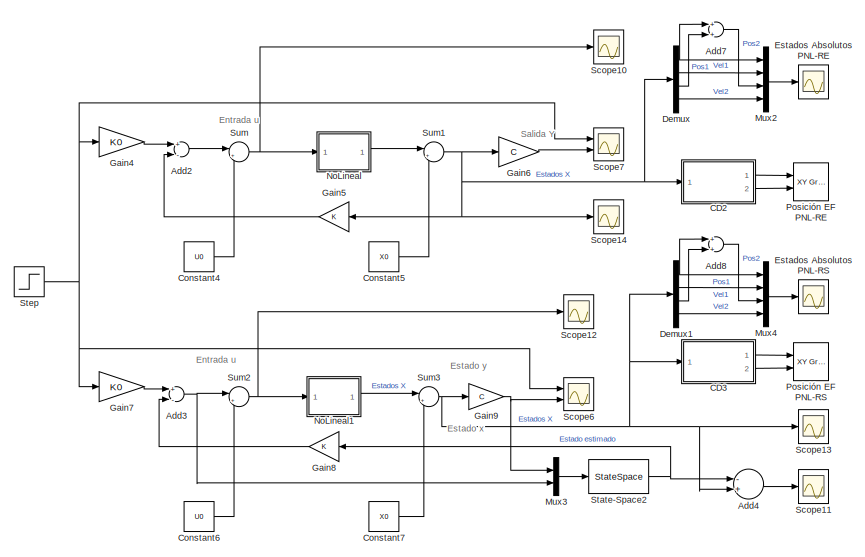
[diagram: root canvas - part 1/2, left side, full height]
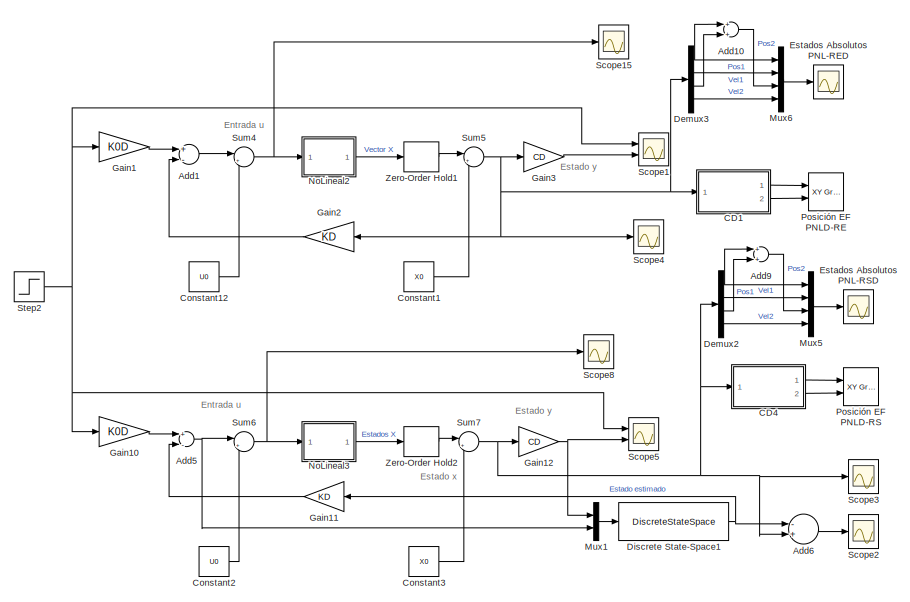
[diagram: root canvas - part 2/2, right side, full height]
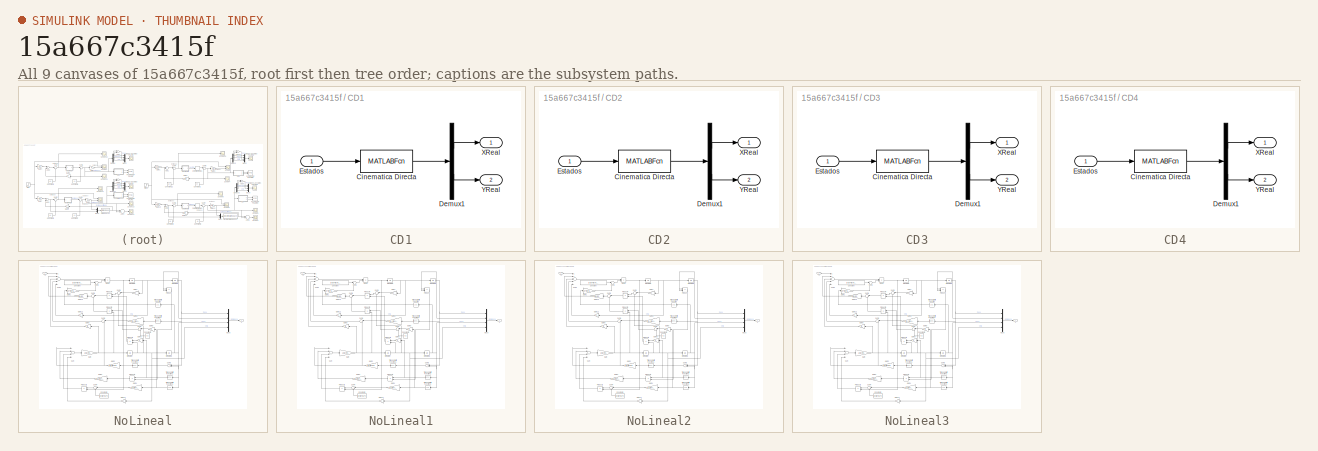
[diagram: thumbnail index - all 9 canvases of the model, root first then tree order]
MODEL slx_15a667c3415f
KIND model
CONFIG AbsTol = auto
CONFIG EnableMultiTasking = off
CONFIG FixedStep = 0.01
CONFIG MaxStep = auto
CONFIG MinStep = auto
CONFIG RelTol = 1e-3
CONFIG SampleTimeConstraint = Unconstrained
CONFIG Solver = ode45
CONFIG SolverName = ode45
CONFIG StartTime = 0.0
CONFIG StopTime = ts
BLOCK [Sum] Add1
  InputSameDT = off
  Inputs = +-
  OutDataTypeStr = Inherit: Inherit via internal rule
  Ports = [2, 1]
  SaturateOnIntegerOverflow = off
BLOCK [Sum] Add10
  InputSameDT = off
  OutDataTypeStr = Inherit: Inherit via internal rule
  Ports = [2, 1]
  SaturateOnIntegerOverflow = off
BLOCK [Sum] Add2
  InputSameDT = off
  Inputs = +-
  OutDataTypeStr = Inherit: Inherit via internal rule
  Ports = [2, 1]
  SaturateOnIntegerOverflow = off
BLOCK [Sum] Add3
  InputSameDT = off
  Inputs = +-
  OutDataTypeStr = Inherit: Inherit via internal rule
  Ports = [2, 1]
  SaturateOnIntegerOverflow = off
BLOCK [Sum] Add4
  InputSameDT = off
  Inputs = -+
  OutDataTypeStr = Inherit: Inherit via internal rule
  Ports = [2, 1]
  SaturateOnIntegerOverflow = off
BLOCK [Sum] Add5
  InputSameDT = off
  Inputs = +-
  OutDataTypeStr = Inherit: Inherit via internal rule
  Ports = [2, 1]
  SaturateOnIntegerOverflow = off
BLOCK [Sum] Add6
  InputSameDT = off
  Inputs = -+
  OutDataTypeStr = Inherit: Inherit via internal rule
  Ports = [2, 1]
  SaturateOnIntegerOverflow = off
BLOCK [Sum] Add7
  InputSameDT = off
  OutDataTypeStr = Inherit: Inherit via internal rule
  Ports = [2, 1]
  SaturateOnIntegerOverflow = off
BLOCK [Sum] Add8
  InputSameDT = off
  OutDataTypeStr = Inherit: Inherit via internal rule
  Ports = [2, 1]
  SaturateOnIntegerOverflow = off
BLOCK [Sum] Add9
  InputSameDT = off
  OutDataTypeStr = Inherit: Inherit via internal rule
  Ports = [2, 1]
  SaturateOnIntegerOverflow = off
BLOCK [SubSystem] CD1
  Ports = [1, 2]
  RequestExecContextInheritance = off
  TreatAsAtomicUnit = on
BLOCK [MATLABFcn] CD1/Cinematica Directa
  MATLABFcn = CinematicaDirecta
  OutputDimensions = 2
  Ports = [1, 1]
BLOCK [Demux] CD1/Demux1
  DisplayOption = bar
  Outputs = 2
  Ports = [1, 2]
BLOCK [Inport] CD1/Estados
  IconDisplay = Port number
BLOCK [Outport] CD1/XReal
  IconDisplay = Port number
  VectorParamsAs1DForOutWhenUnconnected = off
BLOCK [Outport] CD1/YReal
  IconDisplay = Port number
  Port = 2
  VectorParamsAs1DForOutWhenUnconnected = off
BLOCK [SubSystem] CD2
  Ports = [1, 2]
  RequestExecContextInheritance = off
  TreatAsAtomicUnit = on
BLOCK [MATLABFcn] CD2/Cinematica Directa
  MATLABFcn = CinematicaDirecta
  OutputDimensions = 2
  Ports = [1, 1]
BLOCK [Demux] CD2/Demux1
  DisplayOption = bar
  Outputs = 2
  Ports = [1, 2]
BLOCK [Inport] CD2/Estados
  IconDisplay = Port number
BLOCK [Outport] CD2/XReal
  IconDisplay = Port number
  VectorParamsAs1DForOutWhenUnconnected = off
BLOCK [Outport] CD2/YReal
  IconDisplay = Port number
  Port = 2
  VectorParamsAs1DForOutWhenUnconnected = off
BLOCK [SubSystem] CD3
  Ports = [1, 2]
  RequestExecContextInheritance = off
  TreatAsAtomicUnit = on
BLOCK [MATLABFcn] CD3/Cinematica Directa
  MATLABFcn = CinematicaDirecta
  OutputDimensions = 2
  Ports = [1, 1]
BLOCK [Demux] CD3/Demux1
  DisplayOption = bar
  Outputs = 2
  Ports = [1, 2]
BLOCK [Inport] CD3/Estados
  IconDisplay = Port number
BLOCK [Outport] CD3/XReal
  IconDisplay = Port number
  VectorParamsAs1DForOutWhenUnconnected = off
BLOCK [Outport] CD3/YReal
  IconDisplay = Port number
  Port = 2
  VectorParamsAs1DForOutWhenUnconnected = off
BLOCK [SubSystem] CD4
  Ports = [1, 2]
  RequestExecContextInheritance = off
  TreatAsAtomicUnit = on
BLOCK [MATLABFcn] CD4/Cinematica Directa
  MATLABFcn = CinematicaDirecta
  OutputDimensions = 2
  Ports = [1, 1]
BLOCK [Demux] CD4/Demux1
  DisplayOption = bar
  Outputs = 2
  Ports = [1, 2]
BLOCK [Inport] CD4/Estados
  IconDisplay = Port number
BLOCK [Outport] CD4/XReal
  IconDisplay = Port number
  VectorParamsAs1DForOutWhenUnconnected = off
BLOCK [Outport] CD4/YReal
  IconDisplay = Port number
  Port = 2
  VectorParamsAs1DForOutWhenUnconnected = off
BLOCK [Constant] Constant1
  Value = X0
BLOCK [Constant] Constant12
  Value = U0
BLOCK [Constant] Constant2
  Value = U0
BLOCK [Constant] Constant3
  Value = X0
BLOCK [Constant] Constant4
  Value = U0
BLOCK [Constant] Constant5
  Value = X0
BLOCK [Constant] Constant6
  Value = U0
BLOCK [Constant] Constant7
  Value = X0
BLOCK [Demux] Demux
  DisplayOption = bar
  Ports = [1, 4]
BLOCK [Demux] Demux1
  DisplayOption = bar
  Ports = [1, 4]
BLOCK [Demux] Demux2
  DisplayOption = bar
  Ports = [1, 4]
BLOCK [Demux] Demux3
  DisplayOption = bar
  Ports = [1, 4]
BLOCK [DiscreteStateSpace] Discrete State-Space1
  A = AD-LD*CD
  B = [LD BD]
  C = eye(4)
  D = zeros(4,2)
  InitialCondition = XI
  SampleTime = tm
BLOCK [Scope] Estados Absolutos PNL-RE
  Floating = off
  NumInputPorts = 1
  Ports = [1]
  ScopeSpecificationString = Simulink.scopes.TimeScopeBlockCfg('CurrentConfiguration', extmgr.ConfigurationSet(extmgr.Configuration('Core','General UI',true,'FigureColor',[0 0 0]),extmgr.Configuration('Core','Source UI',true),extmgr.Configuration('Sources','WiredSimulink',true,'DataLoggingVariableName','ScopeData1'),extmgr.Configuration('Visuals','Time Domain',true,'SerializedDisplays',{struct('MinYLimReal','-1.14032','MaxYLi...<+2080ch>
BLOCK [Scope] Estados Absolutos PNL-RED
  Floating = off
  NumInputPorts = 1
  Ports = [1]
  ScopeSpecificationString = Simulink.scopes.TimeScopeBlockCfg('CurrentConfiguration', extmgr.ConfigurationSet(extmgr.Configuration('Core','General UI',true,'FigureColor',[0 0 0]),extmgr.Configuration('Core','Source UI',true),extmgr.Configuration('Sources','WiredSimulink',true,'DataLoggingVariableName','ScopeData4'),extmgr.Configuration('Visuals','Time Domain',true,'SerializedDisplays',{struct('MinYLimReal','-1.17599','MaxYLi...<+2076ch>
BLOCK [Scope] Estados Absolutos PNL-RS
  Floating = off
  NumInputPorts = 1
  Ports = [1]
  ScopeSpecificationString = Simulink.scopes.TimeScopeBlockCfg('CurrentConfiguration', extmgr.ConfigurationSet(extmgr.Configuration('Core','General UI',true,'FigureColor',[0 0 0]),extmgr.Configuration('Core','Source UI',true),extmgr.Configuration('Sources','WiredSimulink',true,'DataLoggingVariableName','ScopeData2'),extmgr.Configuration('Visuals','Time Domain',true,'SerializedDisplays',{struct('MinYLimReal','-1.12137','MaxYLi...<+2080ch>
BLOCK [Scope] Estados Absolutos PNL-RSD
  Floating = off
  NumInputPorts = 1
  Ports = [1]
  ScopeSpecificationString = Simulink.scopes.TimeScopeBlockCfg('CurrentConfiguration', extmgr.ConfigurationSet(extmgr.Configuration('Core','General UI',true,'FigureColor',[0 0 0]),extmgr.Configuration('Core','Source UI',true),extmgr.Configuration('Sources','WiredSimulink',true,'DataLoggingVariableName','ScopeData3'),extmgr.Configuration('Visuals','Time Domain',true,'SerializedDisplays',{struct('MinYLimReal','-1.23093','MaxYLi...<+2080ch>
BLOCK [Gain] Gain1
  Gain = K0D
  OutDataTypeStr = Inherit: Inherit via internal rule
  ParamDataTypeStr = Inherit: Inherit via internal rule
  SaturateOnIntegerOverflow = off
BLOCK [Gain] Gain10
  Gain = K0D
  OutDataTypeStr = Inherit: Inherit via internal rule
  ParamDataTypeStr = Inherit: Inherit via internal rule
  SaturateOnIntegerOverflow = off
BLOCK [Gain] Gain11
  Gain = KD
  Multiplication = Matrix(K*u)
  OutDataTypeStr = Inherit: Inherit via internal rule
  ParamDataTypeStr = Inherit: Inherit via internal rule
  SaturateOnIntegerOverflow = off
BLOCK [Gain] Gain12
  Gain = CD
  Multiplication = Matrix(K*u)
  OutDataTypeStr = Inherit: Inherit via internal rule
  ParamDataTypeStr = Inherit: Inherit via internal rule
  SaturateOnIntegerOverflow = off
BLOCK [Gain] Gain2
  Gain = KD
  Multiplication = Matrix(K*u)
  OutDataTypeStr = Inherit: Inherit via internal rule
  ParamDataTypeStr = Inherit: Inherit via internal rule
  SaturateOnIntegerOverflow = off
BLOCK [Gain] Gain3
  Gain = CD
  Multiplication = Matrix(K*u)
  OutDataTypeStr = Inherit: Inherit via internal rule
  ParamDataTypeStr = Inherit: Inherit via internal rule
  SaturateOnIntegerOverflow = off
BLOCK [Gain] Gain4
  Gain = K0
  OutDataTypeStr = Inherit: Inherit via internal rule
  ParamDataTypeStr = Inherit: Inherit via internal rule
  SaturateOnIntegerOverflow = off
BLOCK [Gain] Gain5
  Gain = K
  Multiplication = Matrix(K*u)
  OutDataTypeStr = Inherit: Inherit via internal rule
  ParamDataTypeStr = Inherit: Inherit via internal rule
  SaturateOnIntegerOverflow = off
BLOCK [Gain] Gain6
  Gain = C
  Multiplication = Matrix(K*u)
  OutDataTypeStr = Inherit: Inherit via internal rule
  ParamDataTypeStr = Inherit: Inherit via internal rule
  SaturateOnIntegerOverflow = off
BLOCK [Gain] Gain7
  Gain = K0
  OutDataTypeStr = Inherit: Inherit via internal rule
  ParamDataTypeStr = Inherit: Inherit via internal rule
  SaturateOnIntegerOverflow = off
BLOCK [Gain] Gain8
  Gain = K
  Multiplication = Matrix(K*u)
  OutDataTypeStr = Inherit: Inherit via internal rule
  ParamDataTypeStr = Inherit: Inherit via internal rule
  SaturateOnIntegerOverflow = off
BLOCK [Gain] Gain9
  Gain = C
  Multiplication = Matrix(K*u)
  OutDataTypeStr = Inherit: Inherit via internal rule
  ParamDataTypeStr = Inherit: Inherit via internal rule
  SaturateOnIntegerOverflow = off
BLOCK [Mux] Mux1
  DisplayOption = bar
  Inputs = 2
  Ports = [2, 1]
BLOCK [Mux] Mux2
  DisplayOption = bar
  Ports = [4, 1]
BLOCK [Mux] Mux3
  DisplayOption = bar
  Inputs = 2
  Ports = [2, 1]
BLOCK [Mux] Mux4
  DisplayOption = bar
  Ports = [4, 1]
BLOCK [Mux] Mux5
  DisplayOption = bar
  Ports = [4, 1]
BLOCK [Mux] Mux6
  DisplayOption = bar
  Ports = [4, 1]
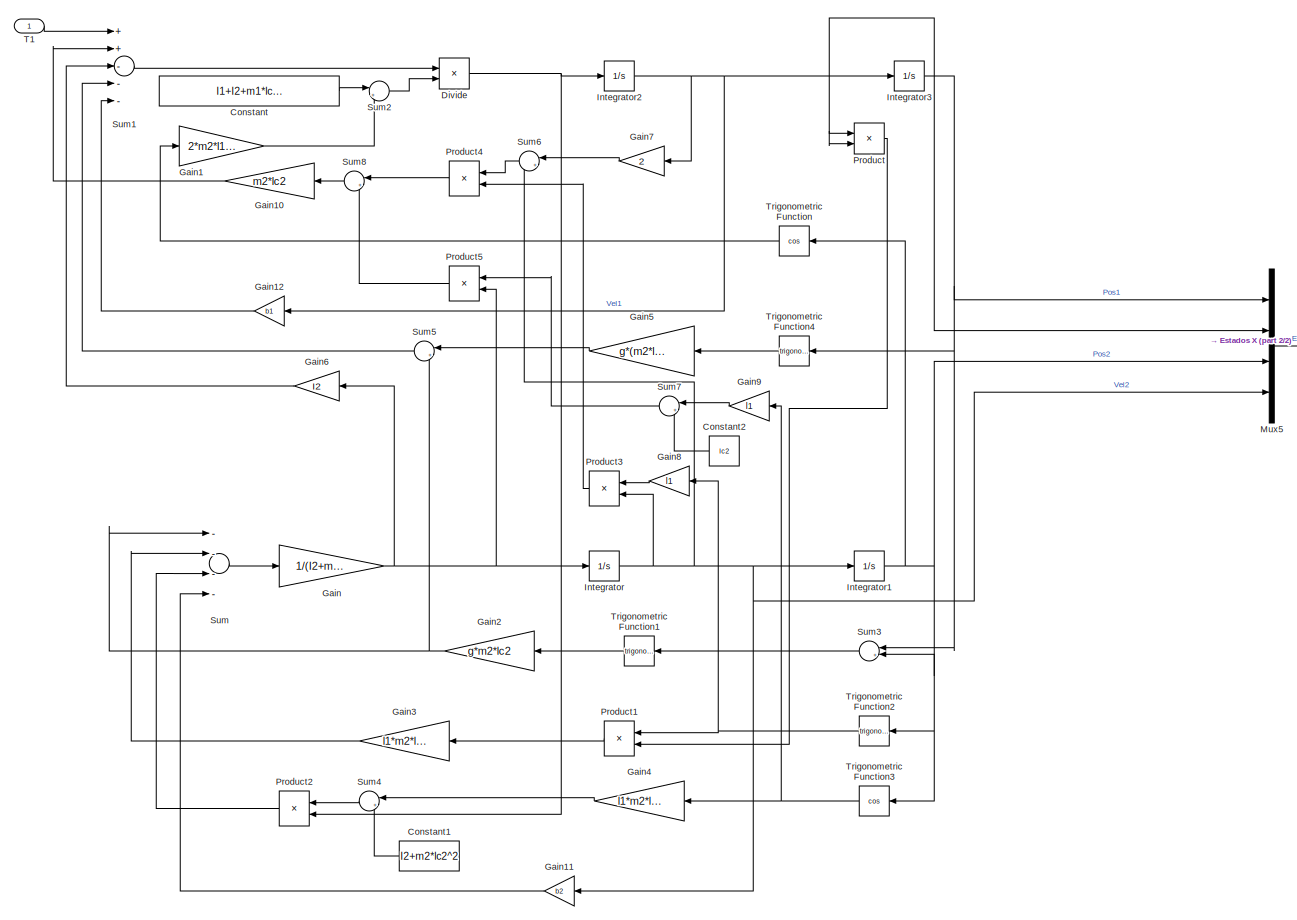
[diagram: NoLineal - part 1/2, most of the canvas]
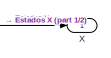
[diagram: NoLineal - part 2/2, middle right region]
BLOCK [SubSystem] NoLineal
  Ports = [1, 1]
  RequestExecContextInheritance = off
BLOCK [Constant] NoLineal/Constant
  Value = I1+I2+m1*lc1^2+m2*(l1^2+lc2^2)
BLOCK [Constant] NoLineal/Constant1
  Value = I2+m2*lc2^2
BLOCK [Constant] NoLineal/Constant2
  Value = lc2
BLOCK [Product] NoLineal/Divide
  InputSameDT = off
  Inputs = */
  OutDataTypeStr = Inherit: Inherit via internal rule
  Ports = [2, 1]
  RndMeth = Floor
  SaturateOnIntegerOverflow = off
BLOCK [Gain] NoLineal/Gain
  Gain = 1/(I2+m2*lc2^2)
  OutDataTypeStr = Inherit: Inherit via internal rule
  ParamDataTypeStr = Inherit: Inherit via internal rule
  SaturateOnIntegerOverflow = off
BLOCK [Gain] NoLineal/Gain1
  Gain = 2*m2*l1*lc2
  OutDataTypeStr = Inherit: Inherit via internal rule
  ParamDataTypeStr = Inherit: Inherit via internal rule
  SaturateOnIntegerOverflow = off
BLOCK [Gain] NoLineal/Gain10
  Gain = m2*lc2
  OutDataTypeStr = Inherit: Inherit via internal rule
  ParamDataTypeStr = Inherit: Inherit via internal rule
  SaturateOnIntegerOverflow = off
BLOCK [Gain] NoLineal/Gain11
  Gain = b2
  OutDataTypeStr = Inherit: Inherit via internal rule
  ParamDataTypeStr = Inherit: Inherit via internal rule
  SaturateOnIntegerOverflow = off
BLOCK [Gain] NoLineal/Gain12
  Gain = b1
  OutDataTypeStr = Inherit: Inherit via internal rule
  ParamDataTypeStr = Inherit: Inherit via internal rule
  SaturateOnIntegerOverflow = off
BLOCK [Gain] NoLineal/Gain2
  Gain = g*m2*lc2
  OutDataTypeStr = Inherit: Inherit via internal rule
  ParamDataTypeStr = Inherit: Inherit via internal rule
  SaturateOnIntegerOverflow = off
BLOCK [Gain] NoLineal/Gain3
  Gain = l1*m2*lc2
  OutDataTypeStr = Inherit: Inherit via internal rule
  ParamDataTypeStr = Inherit: Inherit via internal rule
  SaturateOnIntegerOverflow = off
BLOCK [Gain] NoLineal/Gain4
  Gain = l1*m2*lc2
  OutDataTypeStr = Inherit: Inherit via internal rule
  ParamDataTypeStr = Inherit: Inherit via internal rule
  SaturateOnIntegerOverflow = off
BLOCK [Gain] NoLineal/Gain5
  Gain = g*(m2*l1+m1*lc1)
  OutDataTypeStr = Inherit: Inherit via internal rule
  ParamDataTypeStr = Inherit: Inherit via internal rule
  SaturateOnIntegerOverflow = off
BLOCK [Gain] NoLineal/Gain6
  Gain = I2
  OutDataTypeStr = Inherit: Inherit via internal rule
  ParamDataTypeStr = Inherit: Inherit via internal rule
  SaturateOnIntegerOverflow = off
BLOCK [Gain] NoLineal/Gain7
  Gain = 2
  OutDataTypeStr = Inherit: Inherit via internal rule
  ParamDataTypeStr = Inherit: Inherit via internal rule
  SaturateOnIntegerOverflow = off
BLOCK [Gain] NoLineal/Gain8
  Gain = l1
  OutDataTypeStr = Inherit: Inherit via internal rule
  ParamDataTypeStr = Inherit: Inherit via internal rule
  SaturateOnIntegerOverflow = off
BLOCK [Gain] NoLineal/Gain9
  Gain = l1
  OutDataTypeStr = Inherit: Inherit via internal rule
  ParamDataTypeStr = Inherit: Inherit via internal rule
  SaturateOnIntegerOverflow = off
BLOCK [Integrator] NoLineal/Integrator
  InitialCondition = X0(4)
  Ports = [1, 1]
BLOCK [Integrator] NoLineal/Integrator1
  InitialCondition = X0(3)
  Ports = [1, 1]
BLOCK [Integrator] NoLineal/Integrator2
  InitialCondition = X0(2)
  Ports = [1, 1]
BLOCK [Integrator] NoLineal/Integrator3
  InitialCondition = X0(1)
  Ports = [1, 1]
BLOCK [Mux] NoLineal/Mux5
  DisplayOption = bar
  Ports = [4, 1]
BLOCK [Product] NoLineal/Product
  InputSameDT = off
  OutDataTypeStr = Inherit: Inherit via internal rule
  Ports = [2, 1]
  RndMeth = Floor
  SaturateOnIntegerOverflow = off
BLOCK [Product] NoLineal/Product1
  InputSameDT = off
  OutDataTypeStr = Inherit: Inherit via internal rule
  Ports = [2, 1]
  RndMeth = Floor
  SaturateOnIntegerOverflow = off
BLOCK [Product] NoLineal/Product2
  InputSameDT = off
  OutDataTypeStr = Inherit: Inherit via internal rule
  Ports = [2, 1]
  RndMeth = Floor
  SaturateOnIntegerOverflow = off
BLOCK [Product] NoLineal/Product3
  InputSameDT = off
  OutDataTypeStr = Inherit: Inherit via internal rule
  Ports = [2, 1]
  RndMeth = Floor
  SaturateOnIntegerOverflow = off
BLOCK [Product] NoLineal/Product4
  InputSameDT = off
  OutDataTypeStr = Inherit: Inherit via internal rule
  Ports = [2, 1]
  RndMeth = Floor
  SaturateOnIntegerOverflow = off
BLOCK [Product] NoLineal/Product5
  InputSameDT = off
  OutDataTypeStr = Inherit: Inherit via internal rule
  Ports = [2, 1]
  RndMeth = Floor
  SaturateOnIntegerOverflow = off
BLOCK [Sum] NoLineal/Sum
  InputSameDT = off
  Inputs = ----
  OutDataTypeStr = Inherit: Inherit via internal rule
  Ports = [4, 1]
  SaturateOnIntegerOverflow = off
BLOCK [Sum] NoLineal/Sum1
  InputSameDT = off
  Inputs = ++---
  OutDataTypeStr = Inherit: Inherit via internal rule
  Ports = [5, 1]
  SaturateOnIntegerOverflow = off
BLOCK [Sum] NoLineal/Sum2
  IconShape = round
  InputSameDT = off
  Inputs = |++
  OutDataTypeStr = Inherit: Inherit via internal rule
  Ports = [2, 1]
  SaturateOnIntegerOverflow = off
BLOCK [Sum] NoLineal/Sum3
  IconShape = round
  InputSameDT = off
  Inputs = |++
  OutDataTypeStr = Inherit: Inherit via internal rule
  Ports = [2, 1]
  SaturateOnIntegerOverflow = off
BLOCK [Sum] NoLineal/Sum4
  IconShape = round
  InputSameDT = off
  Inputs = |++
  OutDataTypeStr = Inherit: Inherit via internal rule
  Ports = [2, 1]
  SaturateOnIntegerOverflow = off
BLOCK [Sum] NoLineal/Sum5
  IconShape = round
  InputSameDT = off
  Inputs = |++
  OutDataTypeStr = Inherit: Inherit via internal rule
  Ports = [2, 1]
  SaturateOnIntegerOverflow = off
BLOCK [Sum] NoLineal/Sum6
  IconShape = round
  InputSameDT = off
  Inputs = |++
  OutDataTypeStr = Inherit: Inherit via internal rule
  Ports = [2, 1]
  SaturateOnIntegerOverflow = off
BLOCK [Sum] NoLineal/Sum7
  IconShape = round
  InputSameDT = off
  Inputs = |++
  OutDataTypeStr = Inherit: Inherit via internal rule
  Ports = [2, 1]
  SaturateOnIntegerOverflow = off
BLOCK [Sum] NoLineal/Sum8
  IconShape = round
  InputSameDT = off
  Inputs = |+-
  OutDataTypeStr = Inherit: Inherit via internal rule
  Ports = [2, 1]
  SaturateOnIntegerOverflow = off
BLOCK [Inport] NoLineal/T1
  IconDisplay = Port number
BLOCK [Trigonometry] NoLineal/Trigonometric Function
  Operator = cos
  Ports = [1, 1]
BLOCK [Trigonometry] NoLineal/Trigonometric Function1
  Ports = [1, 1]
BLOCK [Trigonometry] NoLineal/Trigonometric Function2
  Ports = [1, 1]
BLOCK [Trigonometry] NoLineal/Trigonometric Function3
  Operator = cos
  Ports = [1, 1]
BLOCK [Trigonometry] NoLineal/Trigonometric Function4
  Ports = [1, 1]
BLOCK [Outport] NoLineal/X
  IconDisplay = Port number
  VectorParamsAs1DForOutWhenUnconnected = off
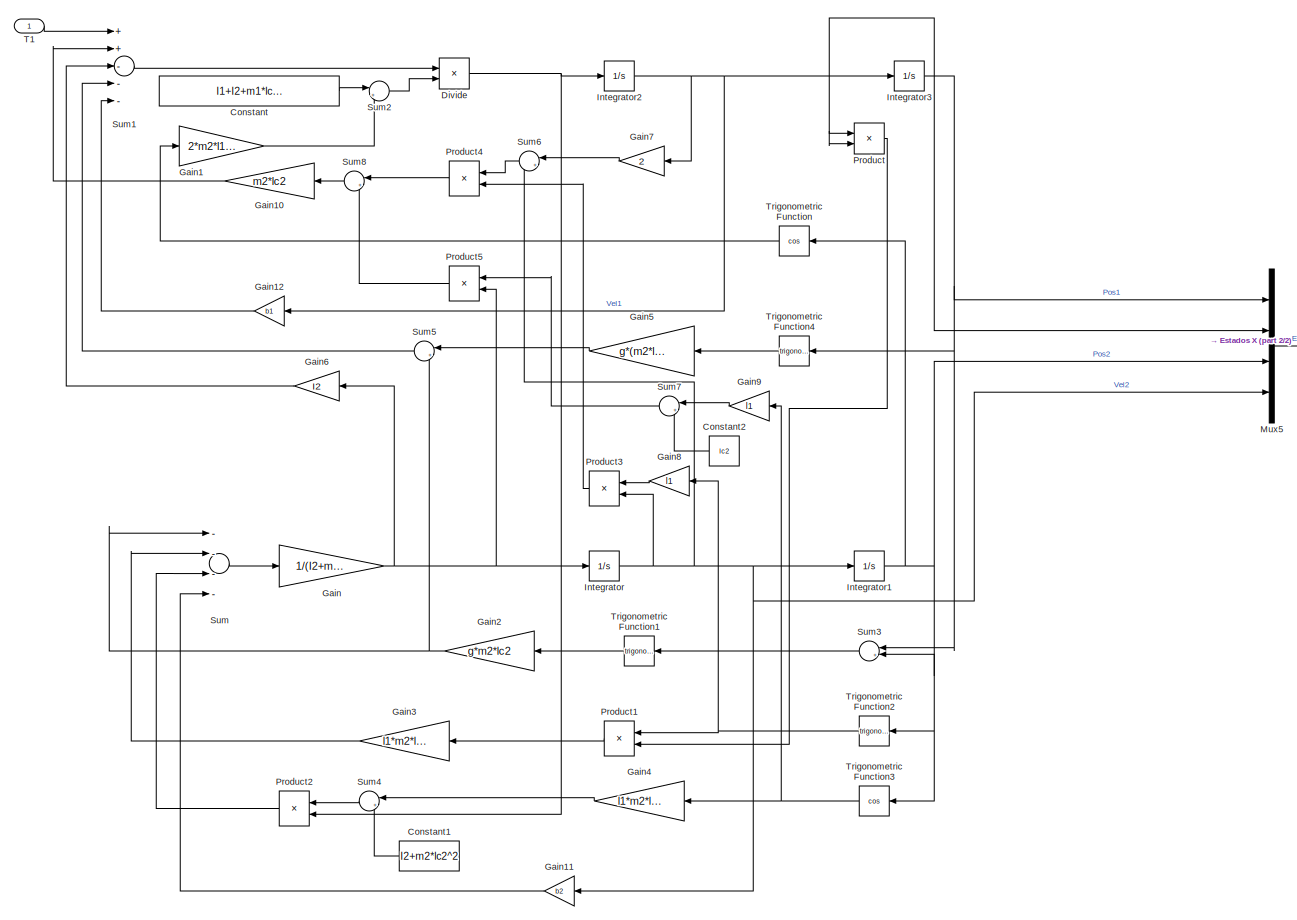
[diagram: NoLineal1 - part 1/2, most of the canvas]
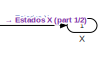
[diagram: NoLineal1 - part 2/2, middle right region]
BLOCK [SubSystem] NoLineal1
  Ports = [1, 1]
  RequestExecContextInheritance = off
BLOCK [Constant] NoLineal1/Constant
  Value = I1+I2+m1*lc1^2+m2*(l1^2+lc2^2)
BLOCK [Constant] NoLineal1/Constant1
  Value = I2+m2*lc2^2
BLOCK [Constant] NoLineal1/Constant2
  Value = lc2
BLOCK [Product] NoLineal1/Divide
  InputSameDT = off
  Inputs = */
  OutDataTypeStr = Inherit: Inherit via internal rule
  Ports = [2, 1]
  RndMeth = Floor
  SaturateOnIntegerOverflow = off
BLOCK [Gain] NoLineal1/Gain
  Gain = 1/(I2+m2*lc2^2)
  OutDataTypeStr = Inherit: Inherit via internal rule
  ParamDataTypeStr = Inherit: Inherit via internal rule
  SaturateOnIntegerOverflow = off
BLOCK [Gain] NoLineal1/Gain1
  Gain = 2*m2*l1*lc2
  OutDataTypeStr = Inherit: Inherit via internal rule
  ParamDataTypeStr = Inherit: Inherit via internal rule
  SaturateOnIntegerOverflow = off
BLOCK [Gain] NoLineal1/Gain10
  Gain = m2*lc2
  OutDataTypeStr = Inherit: Inherit via internal rule
  ParamDataTypeStr = Inherit: Inherit via internal rule
  SaturateOnIntegerOverflow = off
BLOCK [Gain] NoLineal1/Gain11
  Gain = b2
  OutDataTypeStr = Inherit: Inherit via internal rule
  ParamDataTypeStr = Inherit: Inherit via internal rule
  SaturateOnIntegerOverflow = off
BLOCK [Gain] NoLineal1/Gain12
  Gain = b1
  OutDataTypeStr = Inherit: Inherit via internal rule
  ParamDataTypeStr = Inherit: Inherit via internal rule
  SaturateOnIntegerOverflow = off
BLOCK [Gain] NoLineal1/Gain2
  Gain = g*m2*lc2
  OutDataTypeStr = Inherit: Inherit via internal rule
  ParamDataTypeStr = Inherit: Inherit via internal rule
  SaturateOnIntegerOverflow = off
BLOCK [Gain] NoLineal1/Gain3
  Gain = l1*m2*lc2
  OutDataTypeStr = Inherit: Inherit via internal rule
  ParamDataTypeStr = Inherit: Inherit via internal rule
  SaturateOnIntegerOverflow = off
BLOCK [Gain] NoLineal1/Gain4
  Gain = l1*m2*lc2
  OutDataTypeStr = Inherit: Inherit via internal rule
  ParamDataTypeStr = Inherit: Inherit via internal rule
  SaturateOnIntegerOverflow = off
BLOCK [Gain] NoLineal1/Gain5
  Gain = g*(m2*l1+m1*lc1)
  OutDataTypeStr = Inherit: Inherit via internal rule
  ParamDataTypeStr = Inherit: Inherit via internal rule
  SaturateOnIntegerOverflow = off
BLOCK [Gain] NoLineal1/Gain6
  Gain = I2
  OutDataTypeStr = Inherit: Inherit via internal rule
  ParamDataTypeStr = Inherit: Inherit via internal rule
  SaturateOnIntegerOverflow = off
BLOCK [Gain] NoLineal1/Gain7
  Gain = 2
  OutDataTypeStr = Inherit: Inherit via internal rule
  ParamDataTypeStr = Inherit: Inherit via internal rule
  SaturateOnIntegerOverflow = off
BLOCK [Gain] NoLineal1/Gain8
  Gain = l1
  OutDataTypeStr = Inherit: Inherit via internal rule
  ParamDataTypeStr = Inherit: Inherit via internal rule
  SaturateOnIntegerOverflow = off
BLOCK [Gain] NoLineal1/Gain9
  Gain = l1
  OutDataTypeStr = Inherit: Inherit via internal rule
  ParamDataTypeStr = Inherit: Inherit via internal rule
  SaturateOnIntegerOverflow = off
BLOCK [Integrator] NoLineal1/Integrator
  InitialCondition = X0(4)
  Ports = [1, 1]
BLOCK [Integrator] NoLineal1/Integrator1
  InitialCondition = X0(3)
  Ports = [1, 1]
BLOCK [Integrator] NoLineal1/Integrator2
  InitialCondition = X0(2)
  Ports = [1, 1]
BLOCK [Integrator] NoLineal1/Integrator3
  InitialCondition = X0(1)
  Ports = [1, 1]
BLOCK [Mux] NoLineal1/Mux5
  DisplayOption = bar
  Ports = [4, 1]
BLOCK [Product] NoLineal1/Product
  InputSameDT = off
  OutDataTypeStr = Inherit: Inherit via internal rule
  Ports = [2, 1]
  RndMeth = Floor
  SaturateOnIntegerOverflow = off
BLOCK [Product] NoLineal1/Product1
  InputSameDT = off
  OutDataTypeStr = Inherit: Inherit via internal rule
  Ports = [2, 1]
  RndMeth = Floor
  SaturateOnIntegerOverflow = off
BLOCK [Product] NoLineal1/Product2
  InputSameDT = off
  OutDataTypeStr = Inherit: Inherit via internal rule
  Ports = [2, 1]
  RndMeth = Floor
  SaturateOnIntegerOverflow = off
BLOCK [Product] NoLineal1/Product3
  InputSameDT = off
  OutDataTypeStr = Inherit: Inherit via internal rule
  Ports = [2, 1]
  RndMeth = Floor
  SaturateOnIntegerOverflow = off
BLOCK [Product] NoLineal1/Product4
  InputSameDT = off
  OutDataTypeStr = Inherit: Inherit via internal rule
  Ports = [2, 1]
  RndMeth = Floor
  SaturateOnIntegerOverflow = off
BLOCK [Product] NoLineal1/Product5
  InputSameDT = off
  OutDataTypeStr = Inherit: Inherit via internal rule
  Ports = [2, 1]
  RndMeth = Floor
  SaturateOnIntegerOverflow = off
BLOCK [Sum] NoLineal1/Sum
  InputSameDT = off
  Inputs = ----
  OutDataTypeStr = Inherit: Inherit via internal rule
  Ports = [4, 1]
  SaturateOnIntegerOverflow = off
BLOCK [Sum] NoLineal1/Sum1
  InputSameDT = off
  Inputs = ++---
  OutDataTypeStr = Inherit: Inherit via internal rule
  Ports = [5, 1]
  SaturateOnIntegerOverflow = off
BLOCK [Sum] NoLineal1/Sum2
  IconShape = round
  InputSameDT = off
  Inputs = |++
  OutDataTypeStr = Inherit: Inherit via internal rule
  Ports = [2, 1]
  SaturateOnIntegerOverflow = off
BLOCK [Sum] NoLineal1/Sum3
  IconShape = round
  InputSameDT = off
  Inputs = |++
  OutDataTypeStr = Inherit: Inherit via internal rule
  Ports = [2, 1]
  SaturateOnIntegerOverflow = off
BLOCK [Sum] NoLineal1/Sum4
  IconShape = round
  InputSameDT = off
  Inputs = |++
  OutDataTypeStr = Inherit: Inherit via internal rule
  Ports = [2, 1]
  SaturateOnIntegerOverflow = off
BLOCK [Sum] NoLineal1/Sum5
  IconShape = round
  InputSameDT = off
  Inputs = |++
  OutDataTypeStr = Inherit: Inherit via internal rule
  Ports = [2, 1]
  SaturateOnIntegerOverflow = off
BLOCK [Sum] NoLineal1/Sum6
  IconShape = round
  InputSameDT = off
  Inputs = |++
  OutDataTypeStr = Inherit: Inherit via internal rule
  Ports = [2, 1]
  SaturateOnIntegerOverflow = off
BLOCK [Sum] NoLineal1/Sum7
  IconShape = round
  InputSameDT = off
  Inputs = |++
  OutDataTypeStr = Inherit: Inherit via internal rule
  Ports = [2, 1]
  SaturateOnIntegerOverflow = off
BLOCK [Sum] NoLineal1/Sum8
  IconShape = round
  InputSameDT = off
  Inputs = |+-
  OutDataTypeStr = Inherit: Inherit via internal rule
  Ports = [2, 1]
  SaturateOnIntegerOverflow = off
BLOCK [Inport] NoLineal1/T1
  IconDisplay = Port number
BLOCK [Trigonometry] NoLineal1/Trigonometric Function
  Operator = cos
  Ports = [1, 1]
BLOCK [Trigonometry] NoLineal1/Trigonometric Function1
  Ports = [1, 1]
BLOCK [Trigonometry] NoLineal1/Trigonometric Function2
  Ports = [1, 1]
BLOCK [Trigonometry] NoLineal1/Trigonometric Function3
  Operator = cos
  Ports = [1, 1]
BLOCK [Trigonometry] NoLineal1/Trigonometric Function4
  Ports = [1, 1]
BLOCK [Outport] NoLineal1/X
  IconDisplay = Port number
  VectorParamsAs1DForOutWhenUnconnected = off
BLOCK [SubSystem] NoLineal2
  Ports = [1, 1]
  RequestExecContextInheritance = off
BLOCK [Constant] NoLineal2/Constant
  Value = I1+I2+m1*lc1^2+m2*(l1^2+lc2^2)
BLOCK [Constant] NoLineal2/Constant1
  Value = I2+m2*lc2^2
BLOCK [Constant] NoLineal2/Constant2
  Value = lc2
BLOCK [Product] NoLineal2/Divide
  InputSameDT = off
  Inputs = */
  OutDataTypeStr = Inherit: Inherit via internal rule
  Ports = [2, 1]
  RndMeth = Floor
  SaturateOnIntegerOverflow = off
BLOCK [Gain] NoLineal2/Gain
  Gain = 1/(I2+m2*lc2^2)
  OutDataTypeStr = Inherit: Inherit via internal rule
  ParamDataTypeStr = Inherit: Inherit via internal rule
  SaturateOnIntegerOverflow = off
BLOCK [Gain] NoLineal2/Gain1
  Gain = 2*m2*l1*lc2
  OutDataTypeStr = Inherit: Inherit via internal rule
  ParamDataTypeStr = Inherit: Inherit via internal rule
  SaturateOnIntegerOverflow = off
BLOCK [Gain] NoLineal2/Gain10
  Gain = m2*lc2
  OutDataTypeStr = Inherit: Inherit via internal rule
  ParamDataTypeStr = Inherit: Inherit via internal rule
  SaturateOnIntegerOverflow = off
BLOCK [Gain] NoLineal2/Gain11
  Gain = b2
  OutDataTypeStr = Inherit: Inherit via internal rule
  ParamDataTypeStr = Inherit: Inherit via internal rule
  SaturateOnIntegerOverflow = off
BLOCK [Gain] NoLineal2/Gain12
  Gain = b1
  OutDataTypeStr = Inherit: Inherit via internal rule
  ParamDataTypeStr = Inherit: Inherit via internal rule
  SaturateOnIntegerOverflow = off
BLOCK [Gain] NoLineal2/Gain2
  Gain = g*m2*lc2
  OutDataTypeStr = Inherit: Inherit via internal rule
  ParamDataTypeStr = Inherit: Inherit via internal rule
  SaturateOnIntegerOverflow = off
BLOCK [Gain] NoLineal2/Gain3
  Gain = l1*m2*lc2
  OutDataTypeStr = Inherit: Inherit via internal rule
  ParamDataTypeStr = Inherit: Inherit via internal rule
  SaturateOnIntegerOverflow = off
BLOCK [Gain] NoLineal2/Gain4
  Gain = l1*m2*lc2
  OutDataTypeStr = Inherit: Inherit via internal rule
  ParamDataTypeStr = Inherit: Inherit via internal rule
  SaturateOnIntegerOverflow = off
BLOCK [Gain] NoLineal2/Gain5
  Gain = g*(m2*l1+m1*lc1)
  OutDataTypeStr = Inherit: Inherit via internal rule
  ParamDataTypeStr = Inherit: Inherit via internal rule
  SaturateOnIntegerOverflow = off
BLOCK [Gain] NoLineal2/Gain6
  Gain = I2
  OutDataTypeStr = Inherit: Inherit via internal rule
  ParamDataTypeStr = Inherit: Inherit via internal rule
  SaturateOnIntegerOverflow = off
BLOCK [Gain] NoLineal2/Gain7
  Gain = 2
  OutDataTypeStr = Inherit: Inherit via internal rule
  ParamDataTypeStr = Inherit: Inherit via internal rule
  SaturateOnIntegerOverflow = off
BLOCK [Gain] NoLineal2/Gain8
  Gain = l1
  OutDataTypeStr = Inherit: Inherit via internal rule
  ParamDataTypeStr = Inherit: Inherit via internal rule
  SaturateOnIntegerOverflow = off
BLOCK [Gain] NoLineal2/Gain9
  Gain = l1
  OutDataTypeStr = Inherit: Inherit via internal rule
  ParamDataTypeStr = Inherit: Inherit via internal rule
  SaturateOnIntegerOverflow = off
BLOCK [Integrator] NoLineal2/Integrator
  InitialCondition = X0(4)
  Ports = [1, 1]
BLOCK [Integrator] NoLineal2/Integrator1
  InitialCondition = X0(3)
  Ports = [1, 1]
BLOCK [Integrator] NoLineal2/Integrator2
  InitialCondition = X0(2)
  Ports = [1, 1]
BLOCK [Integrator] NoLineal2/Integrator3
  InitialCondition = X0(1)
  Ports = [1, 1]
BLOCK [Mux] NoLineal2/Mux5
  DisplayOption = bar
  Ports = [4, 1]
BLOCK [Product] NoLineal2/Product
  InputSameDT = off
  OutDataTypeStr = Inherit: Inherit via internal rule
  Ports = [2, 1]
  RndMeth = Floor
  SaturateOnIntegerOverflow = off
BLOCK [Product] NoLineal2/Product1
  InputSameDT = off
  OutDataTypeStr = Inherit: Inherit via internal rule
  Ports = [2, 1]
  RndMeth = Floor
  SaturateOnIntegerOverflow = off
BLOCK [Product] NoLineal2/Product2
  InputSameDT = off
  OutDataTypeStr = Inherit: Inherit via internal rule
  Ports = [2, 1]
  RndMeth = Floor
  SaturateOnIntegerOverflow = off
BLOCK [Product] NoLineal2/Product3
  InputSameDT = off
  OutDataTypeStr = Inherit: Inherit via internal rule
  Ports = [2, 1]
  RndMeth = Floor
  SaturateOnIntegerOverflow = off
BLOCK [Product] NoLineal2/Product4
  InputSameDT = off
  OutDataTypeStr = Inherit: Inherit via internal rule
  Ports = [2, 1]
  RndMeth = Floor
  SaturateOnIntegerOverflow = off
BLOCK [Product] NoLineal2/Product5
  InputSameDT = off
  OutDataTypeStr = Inherit: Inherit via internal rule
  Ports = [2, 1]
  RndMeth = Floor
  SaturateOnIntegerOverflow = off
BLOCK [Sum] NoLineal2/Sum
  InputSameDT = off
  Inputs = ----
  OutDataTypeStr = Inherit: Inherit via internal rule
  Ports = [4, 1]
  SaturateOnIntegerOverflow = off
BLOCK [Sum] NoLineal2/Sum1
  InputSameDT = off
  Inputs = ++---
  OutDataTypeStr = Inherit: Inherit via internal rule
  Ports = [5, 1]
  SaturateOnIntegerOverflow = off
BLOCK [Sum] NoLineal2/Sum2
  IconShape = round
  InputSameDT = off
  Inputs = |++
  OutDataTypeStr = Inherit: Inherit via internal rule
  Ports = [2, 1]
  SaturateOnIntegerOverflow = off
BLOCK [Sum] NoLineal2/Sum3
  IconShape = round
  InputSameDT = off
  Inputs = |++
  OutDataTypeStr = Inherit: Inherit via internal rule
  Ports = [2, 1]
  SaturateOnIntegerOverflow = off
BLOCK [Sum] NoLineal2/Sum4
  IconShape = round
  InputSameDT = off
  Inputs = |++
  OutDataTypeStr = Inherit: Inherit via internal rule
  Ports = [2, 1]
  SaturateOnIntegerOverflow = off
BLOCK [Sum] NoLineal2/Sum5
  IconShape = round
  InputSameDT = off
  Inputs = |++
  OutDataTypeStr = Inherit: Inherit via internal rule
  Ports = [2, 1]
  SaturateOnIntegerOverflow = off
BLOCK [Sum] NoLineal2/Sum6
  IconShape = round
  InputSameDT = off
  Inputs = |++
  OutDataTypeStr = Inherit: Inherit via internal rule
  Ports = [2, 1]
  SaturateOnIntegerOverflow = off
BLOCK [Sum] NoLineal2/Sum7
  IconShape = round
  InputSameDT = off
  Inputs = |++
  OutDataTypeStr = Inherit: Inherit via internal rule
  Ports = [2, 1]
  SaturateOnIntegerOverflow = off
BLOCK [Sum] NoLineal2/Sum8
  IconShape = round
  InputSameDT = off
  Inputs = |+-
  OutDataTypeStr = Inherit: Inherit via internal rule
  Ports = [2, 1]
  SaturateOnIntegerOverflow = off
BLOCK [Inport] NoLineal2/T1
  IconDisplay = Port number
BLOCK [Trigonometry] NoLineal2/Trigonometric Function
  Operator = cos
  Ports = [1, 1]
BLOCK [Trigonometry] NoLineal2/Trigonometric Function1
  Ports = [1, 1]
BLOCK [Trigonometry] NoLineal2/Trigonometric Function2
  Ports = [1, 1]
BLOCK [Trigonometry] NoLineal2/Trigonometric Function3
  Operator = cos
  Ports = [1, 1]
BLOCK [Trigonometry] NoLineal2/Trigonometric Function4
  Ports = [1, 1]
BLOCK [Outport] NoLineal2/X
  IconDisplay = Port number
  VectorParamsAs1DForOutWhenUnconnected = off
BLOCK [SubSystem] NoLineal3
  Ports = [1, 1]
  RequestExecContextInheritance = off
BLOCK [Constant] NoLineal3/Constant
  Value = I1+I2+m1*lc1^2+m2*(l1^2+lc2^2)
BLOCK [Constant] NoLineal3/Constant1
  Value = I2+m2*lc2^2
BLOCK [Constant] NoLineal3/Constant2
  Value = lc2
BLOCK [Product] NoLineal3/Divide
  InputSameDT = off
  Inputs = */
  OutDataTypeStr = Inherit: Inherit via internal rule
  Ports = [2, 1]
  RndMeth = Floor
  SaturateOnIntegerOverflow = off
BLOCK [Gain] NoLineal3/Gain
  Gain = 1/(I2+m2*lc2^2)
  OutDataTypeStr = Inherit: Inherit via internal rule
  ParamDataTypeStr = Inherit: Inherit via internal rule
  SaturateOnIntegerOverflow = off
BLOCK [Gain] NoLineal3/Gain1
  Gain = 2*m2*l1*lc2
  OutDataTypeStr = Inherit: Inherit via internal rule
  ParamDataTypeStr = Inherit: Inherit via internal rule
  SaturateOnIntegerOverflow = off
BLOCK [Gain] NoLineal3/Gain10
  Gain = m2*lc2
  OutDataTypeStr = Inherit: Inherit via internal rule
  ParamDataTypeStr = Inherit: Inherit via internal rule
  SaturateOnIntegerOverflow = off
BLOCK [Gain] NoLineal3/Gain11
  Gain = b2
  OutDataTypeStr = Inherit: Inherit via internal rule
  ParamDataTypeStr = Inherit: Inherit via internal rule
  SaturateOnIntegerOverflow = off
BLOCK [Gain] NoLineal3/Gain12
  Gain = b1
  OutDataTypeStr = Inherit: Inherit via internal rule
  ParamDataTypeStr = Inherit: Inherit via internal rule
  SaturateOnIntegerOverflow = off
BLOCK [Gain] NoLineal3/Gain2
  Gain = g*m2*lc2
  OutDataTypeStr = Inherit: Inherit via internal rule
  ParamDataTypeStr = Inherit: Inherit via internal rule
  SaturateOnIntegerOverflow = off
BLOCK [Gain] NoLineal3/Gain3
  Gain = l1*m2*lc2
  OutDataTypeStr = Inherit: Inherit via internal rule
  ParamDataTypeStr = Inherit: Inherit via internal rule
  SaturateOnIntegerOverflow = off
BLOCK [Gain] NoLineal3/Gain4
  Gain = l1*m2*lc2
  OutDataTypeStr = Inherit: Inherit via internal rule
  ParamDataTypeStr = Inherit: Inherit via internal rule
  SaturateOnIntegerOverflow = off
BLOCK [Gain] NoLineal3/Gain5
  Gain = g*(m2*l1+m1*lc1)
  OutDataTypeStr = Inherit: Inherit via internal rule
  ParamDataTypeStr = Inherit: Inherit via internal rule
  SaturateOnIntegerOverflow = off
BLOCK [Gain] NoLineal3/Gain6
  Gain = I2
  OutDataTypeStr = Inherit: Inherit via internal rule
  ParamDataTypeStr = Inherit: Inherit via internal rule
  SaturateOnIntegerOverflow = off
BLOCK [Gain] NoLineal3/Gain7
  Gain = 2
  OutDataTypeStr = Inherit: Inherit via internal rule
  ParamDataTypeStr = Inherit: Inherit via internal rule
  SaturateOnIntegerOverflow = off
BLOCK [Gain] NoLineal3/Gain8
  Gain = l1
  OutDataTypeStr = Inherit: Inherit via internal rule
  ParamDataTypeStr = Inherit: Inherit via internal rule
  SaturateOnIntegerOverflow = off
BLOCK [Gain] NoLineal3/Gain9
  Gain = l1
  OutDataTypeStr = Inherit: Inherit via internal rule
  ParamDataTypeStr = Inherit: Inherit via internal rule
  SaturateOnIntegerOverflow = off
BLOCK [Integrator] NoLineal3/Integrator
  InitialCondition = X0(4)
  Ports = [1, 1]
BLOCK [Integrator] NoLineal3/Integrator1
  InitialCondition = X0(3)
  Ports = [1, 1]
BLOCK [Integrator] NoLineal3/Integrator2
  InitialCondition = X0(2)
  Ports = [1, 1]
BLOCK [Integrator] NoLineal3/Integrator3
  InitialCondition = X0(1)
  Ports = [1, 1]
BLOCK [Mux] NoLineal3/Mux5
  DisplayOption = bar
  Ports = [4, 1]
BLOCK [Product] NoLineal3/Product
  InputSameDT = off
  OutDataTypeStr = Inherit: Inherit via internal rule
  Ports = [2, 1]
  RndMeth = Floor
  SaturateOnIntegerOverflow = off
BLOCK [Product] NoLineal3/Product1
  InputSameDT = off
  OutDataTypeStr = Inherit: Inherit via internal rule
  Ports = [2, 1]
  RndMeth = Floor
  SaturateOnIntegerOverflow = off
BLOCK [Product] NoLineal3/Product2
  InputSameDT = off
  OutDataTypeStr = Inherit: Inherit via internal rule
  Ports = [2, 1]
  RndMeth = Floor
  SaturateOnIntegerOverflow = off
BLOCK [Product] NoLineal3/Product3
  InputSameDT = off
  OutDataTypeStr = Inherit: Inherit via internal rule
  Ports = [2, 1]
  RndMeth = Floor
  SaturateOnIntegerOverflow = off
BLOCK [Product] NoLineal3/Product4
  InputSameDT = off
  OutDataTypeStr = Inherit: Inherit via internal rule
  Ports = [2, 1]
  RndMeth = Floor
  SaturateOnIntegerOverflow = off
BLOCK [Product] NoLineal3/Product5
  InputSameDT = off
  OutDataTypeStr = Inherit: Inherit via internal rule
  Ports = [2, 1]
  RndMeth = Floor
  SaturateOnIntegerOverflow = off
BLOCK [Sum] NoLineal3/Sum
  InputSameDT = off
  Inputs = ----
  OutDataTypeStr = Inherit: Inherit via internal rule
  Ports = [4, 1]
  SaturateOnIntegerOverflow = off
BLOCK [Sum] NoLineal3/Sum1
  InputSameDT = off
  Inputs = ++---
  OutDataTypeStr = Inherit: Inherit via internal rule
  Ports = [5, 1]
  SaturateOnIntegerOverflow = off
BLOCK [Sum] NoLineal3/Sum2
  IconShape = round
  InputSameDT = off
  Inputs = |++
  OutDataTypeStr = Inherit: Inherit via internal rule
  Ports = [2, 1]
  SaturateOnIntegerOverflow = off
BLOCK [Sum] NoLineal3/Sum3
  IconShape = round
  InputSameDT = off
  Inputs = |++
  OutDataTypeStr = Inherit: Inherit via internal rule
  Ports = [2, 1]
  SaturateOnIntegerOverflow = off
BLOCK [Sum] NoLineal3/Sum4
  IconShape = round
  InputSameDT = off
  Inputs = |++
  OutDataTypeStr = Inherit: Inherit via internal rule
  Ports = [2, 1]
  SaturateOnIntegerOverflow = off
BLOCK [Sum] NoLineal3/Sum5
  IconShape = round
  InputSameDT = off
  Inputs = |++
  OutDataTypeStr = Inherit: Inherit via internal rule
  Ports = [2, 1]
  SaturateOnIntegerOverflow = off
BLOCK [Sum] NoLineal3/Sum6
  IconShape = round
  InputSameDT = off
  Inputs = |++
  OutDataTypeStr = Inherit: Inherit via internal rule
  Ports = [2, 1]
  SaturateOnIntegerOverflow = off
BLOCK [Sum] NoLineal3/Sum7
  IconShape = round
  InputSameDT = off
  Inputs = |++
  OutDataTypeStr = Inherit: Inherit via internal rule
  Ports = [2, 1]
  SaturateOnIntegerOverflow = off
BLOCK [Sum] NoLineal3/Sum8
  IconShape = round
  InputSameDT = off
  Inputs = |+-
  OutDataTypeStr = Inherit: Inherit via internal rule
  Ports = [2, 1]
  SaturateOnIntegerOverflow = off
BLOCK [Inport] NoLineal3/T1
  IconDisplay = Port number
BLOCK [Trigonometry] NoLineal3/Trigonometric Function
  Operator = cos
  Ports = [1, 1]
BLOCK [Trigonometry] NoLineal3/Trigonometric Function1
  Ports = [1, 1]
BLOCK [Trigonometry] NoLineal3/Trigonometric Function2
  Ports = [1, 1]
BLOCK [Trigonometry] NoLineal3/Trigonometric Function3
  Operator = cos
  Ports = [1, 1]
BLOCK [Trigonometry] NoLineal3/Trigonometric Function4
  Ports = [1, 1]
BLOCK [Outport] NoLineal3/X
  IconDisplay = Port number
  VectorParamsAs1DForOutWhenUnconnected = off
BLOCK [Reference] Posición EF PNL-RE  REF=simulink/Sinks/XY Graph
  Ports = [2]
  SourceBlock = simulink/Sinks/XY Graph
  SourceProductBaseCode = SL
  SourceProductName = Simulink
  SourceType = XY scope.
BLOCK [Reference] Posición EF PNL-RS  REF=simulink/Sinks/XY Graph
  Ports = [2]
  SourceBlock = simulink/Sinks/XY Graph
  SourceProductBaseCode = SL
  SourceProductName = Simulink
  SourceType = XY scope.
BLOCK [Reference] Posición EF PNLD-RE  REF=simulink/Sinks/XY Graph
  Ports = [2]
  SourceBlock = simulink/Sinks/XY Graph
  SourceProductBaseCode = SL
  SourceProductName = Simulink
  SourceType = XY scope.
BLOCK [Reference] Posición EF PNLD-RS  REF=simulink/Sinks/XY Graph
  Ports = [2]
  SourceBlock = simulink/Sinks/XY Graph
  SourceProductBaseCode = SL
  SourceProductName = Simulink
  SourceType = XY scope.
BLOCK [Scope] Scope1
  Floating = off
  NumInputPorts = 2
  Ports = [2]
  ScopeSpecificationString = Simulink.scopes.TimeScopeBlockCfg('CurrentConfiguration', extmgr.ConfigurationSet(extmgr.Configuration('Core','General UI',true,'FigureColor',[0 0 0]),extmgr.Configuration('Core','Source UI',true),extmgr.Configuration('Sources','WiredSimulink',true,'DataLoggingVariableName','ScopeData1'),extmgr.Configuration('Visuals','Time Domain',true,'SerializedDisplays',{struct('MinYLimReal','-0.15003','MaxYLi...<+1821ch>
BLOCK [Scope] Scope10
  Floating = off
  NumInputPorts = 1
  Ports = [1]
  ScopeSpecificationString = Simulink.scopes.TimeScopeBlockCfg('CurrentConfiguration', extmgr.ConfigurationSet(extmgr.Configuration('Core','General UI',true,'FigureColor',[0 0 0]),extmgr.Configuration('Core','Source UI',true),extmgr.Configuration('Sources','WiredSimulink',true,'DataLoggingVariableName','ScopeData5'),extmgr.Configuration('Visuals','Time Domain',true,'SerializedDisplays',{struct('MinYLimReal','-0.25984','MaxYLi...<+1676ch>
BLOCK [Scope] Scope11
  Floating = off
  NumInputPorts = 1
  Ports = [1]
  ScopeSpecificationString = Simulink.scopes.TimeScopeBlockCfg('CurrentConfiguration', extmgr.ConfigurationSet(extmgr.Configuration('Core','General UI',true,'FigureColor',[0 0 0]),extmgr.Configuration('Core','Source UI',true),extmgr.Configuration('Sources','WiredSimulink',true,'DataLoggingVariableName','ScopeData6'),extmgr.Configuration('Visuals','Time Domain',true,'SerializedDisplays',{struct('MinYLimReal','-0.02242','MaxYLi...<+2088ch>
BLOCK [Scope] Scope12
  Floating = off
  NumInputPorts = 1
  Ports = [1]
  ScopeSpecificationString = Simulink.scopes.TimeScopeBlockCfg('CurrentConfiguration', extmgr.ConfigurationSet(extmgr.Configuration('Core','General UI',true,'FigureColor',[0 0 0]),extmgr.Configuration('Core','Source UI',true),extmgr.Configuration('Sources','WiredSimulink',true,'DataLoggingVariableName','ScopeData7'),extmgr.Configuration('Visuals','Time Domain',true,'SerializedDisplays',{struct('MinYLimReal','-0.26039','MaxYLi...<+1677ch>
BLOCK [Scope] Scope13
  Floating = off
  NumInputPorts = 1
  Ports = [1]
  ScopeSpecificationString = Simulink.scopes.TimeScopeBlockCfg('CurrentConfiguration', extmgr.ConfigurationSet(extmgr.Configuration('Core','General UI',true,'FigureColor',[0 0 0]),extmgr.Configuration('Core','Source UI',true),extmgr.Configuration('Sources','WiredSimulink',true,'DataLoggingVariableName','ScopeData8'),extmgr.Configuration('Visuals','Time Domain',true,'SerializedDisplays',{struct('MinYLimReal','-90.87837','MaxYL...<+1956ch>
BLOCK [Scope] Scope14
  Floating = off
  NumInputPorts = 1
  Ports = [1]
  ScopeSpecificationString = Simulink.scopes.TimeScopeBlockCfg('CurrentConfiguration', extmgr.ConfigurationSet(extmgr.Configuration('Core','General UI',true,'FigureColor',[0 0 0]),extmgr.Configuration('Core','Source UI',true),extmgr.Configuration('Sources','WiredSimulink',true,'DataLoggingVariableName','ScopeData9'),extmgr.Configuration('Visuals','Time Domain',true,'SerializedDisplays',{struct('MinYLimReal','-0.22545','MaxYLi...<+2108ch>
BLOCK [Scope] Scope15
  Floating = off
  NumInputPorts = 1
  Ports = [1]
  ScopeSpecificationString = Simulink.scopes.TimeScopeBlockCfg('CurrentConfiguration', extmgr.ConfigurationSet(extmgr.Configuration('Core','General UI',true,'FigureColor',[0 0 0]),extmgr.Configuration('Core','Source UI',true),extmgr.Configuration('Sources','WiredSimulink',true,'DataLoggingVariableName','ScopeData2'),extmgr.Configuration('Visuals','Time Domain',true,'SerializedDisplays',{struct('MinYLimReal','-0.25633','MaxYLi...<+1677ch>
BLOCK [Scope] Scope2
  Floating = off
  NumInputPorts = 1
  Ports = [1]
  ScopeSpecificationString = Simulink.scopes.TimeScopeBlockCfg('CurrentConfiguration', extmgr.ConfigurationSet(extmgr.Configuration('Core','General UI',true,'FigureColor',[0 0 0]),extmgr.Configuration('Core','Source UI',true),extmgr.Configuration('Sources','WiredSimulink',true,'DataLoggingVariableName','ScopeData3'),extmgr.Configuration('Visuals','Time Domain',true,'SerializedDisplays',{struct('MinYLimReal','-0.02444','MaxYLi...<+2088ch>
BLOCK [Scope] Scope3
  Floating = off
  NumInputPorts = 1
  Ports = [1]
  ScopeSpecificationString = Simulink.scopes.TimeScopeBlockCfg('CurrentConfiguration', extmgr.ConfigurationSet(extmgr.Configuration('Core','General UI',true,'FigureColor',[0 0 0]),extmgr.Configuration('Core','Source UI',true),extmgr.Configuration('Sources','WiredSimulink',true,'DataLoggingVariableName','ScopeData4'),extmgr.Configuration('Visuals','Time Domain',true,'SerializedDisplays',{struct('MinYLimReal','-6688899227985166...<+2432ch>
BLOCK [Scope] Scope4
  Floating = off
  NumInputPorts = 1
  Ports = [1]
  ScopeSpecificationString = Simulink.scopes.TimeScopeBlockCfg('CurrentConfiguration', extmgr.ConfigurationSet(extmgr.Configuration('Core','General UI',true,'FigureColor',[0 0 0]),extmgr.Configuration('Core','Source UI',true),extmgr.Configuration('Sources','WiredSimulink',true,'DataLoggingVariableName','ScopeData5'),extmgr.Configuration('Visuals','Time Domain',true,'SerializedDisplays',{struct('MinYLimReal','-3.3622','MaxYLim...<+1948ch>
BLOCK [Scope] Scope5
  Floating = off
  NumInputPorts = 2
  Ports = [2]
  ScopeSpecificationString = Simulink.scopes.TimeScopeBlockCfg('CurrentConfiguration', extmgr.ConfigurationSet(extmgr.Configuration('Core','General UI',true,'FigureColor',[0 0 0]),extmgr.Configuration('Core','Source UI',true),extmgr.Configuration('Sources','WiredSimulink',true,'DataLoggingVariableName','ScopeData6'),extmgr.Configuration('Visuals','Time Domain',true,'SerializedDisplays',{struct('MinYLimReal','-0.1509','MaxYLim...<+1820ch>
BLOCK [Scope] Scope6
  Floating = off
  NumInputPorts = 2
  Ports = [2]
  ScopeSpecificationString = Simulink.scopes.TimeScopeBlockCfg('CurrentConfiguration', extmgr.ConfigurationSet(extmgr.Configuration('Core','General UI',true,'FigureColor',[0 0 0]),extmgr.Configuration('Core','Source UI',true),extmgr.Configuration('Sources','WiredSimulink',true,'DataLoggingVariableName','ScopeData1'),extmgr.Configuration('Visuals','Time Domain',true,'SerializedDisplays',{struct('MinYLimReal','-0.15016','MaxYLi...<+1820ch>
BLOCK [Scope] Scope7
  Floating = off
  NumInputPorts = 2
  Ports = [2]
  ScopeSpecificationString = Simulink.scopes.TimeScopeBlockCfg('CurrentConfiguration', extmgr.ConfigurationSet(extmgr.Configuration('Core','General UI',true,'FigureColor',[0 0 0]),extmgr.Configuration('Core','Source UI',true),extmgr.Configuration('Sources','WiredSimulink',true,'DataLoggingVariableName','ScopeData11'),extmgr.Configuration('Visuals','Time Domain',true,'SerializedDisplays',{struct('MinYLimReal','-0.15001','MaxYL...<+1817ch>
BLOCK [Scope] Scope8
  Floating = off
  NumInputPorts = 1
  Ports = [1]
  ScopeSpecificationString = Simulink.scopes.TimeScopeBlockCfg('CurrentConfiguration', extmgr.ConfigurationSet(extmgr.Configuration('Core','General UI',true,'FigureColor',[0 0 0]),extmgr.Configuration('Core','Source UI',true),extmgr.Configuration('Sources','WiredSimulink',true,'DataLoggingVariableName','ScopeData7'),extmgr.Configuration('Visuals','Time Domain',true,'SerializedDisplays',{struct('MinYLimReal','-0.2577','MaxYLim...<+1673ch>
BLOCK [StateSpace] State-Space2
  A = Al-L*C
  B = [L,Bl]
  C = eye(4)
  D = zeros(4,2)
  InitialCondition = XI
  Ports = [1, 1]
BLOCK [Step] Step
  After = Ref
  SampleTime = 0
  Time = 0
BLOCK [Step] Step2
  After = Ref
  SampleTime = tm
  Time = 0
BLOCK [Sum] Sum
  IconShape = round
  InputSameDT = off
  Inputs = |++
  OutDataTypeStr = Inherit: Inherit via internal rule
  Ports = [2, 1]
  SaturateOnIntegerOverflow = off
BLOCK [Sum] Sum1
  IconShape = round
  InputSameDT = off
  Inputs = |+-
  OutDataTypeStr = Inherit: Inherit via internal rule
  Ports = [2, 1]
  SaturateOnIntegerOverflow = off
BLOCK [Sum] Sum2
  IconShape = round
  InputSameDT = off
  Inputs = |++
  OutDataTypeStr = Inherit: Inherit via internal rule
  Ports = [2, 1]
  SaturateOnIntegerOverflow = off
BLOCK [Sum] Sum3
  IconShape = round
  InputSameDT = off
  Inputs = |+-
  OutDataTypeStr = Inherit: Inherit via internal rule
  Ports = [2, 1]
  SaturateOnIntegerOverflow = off
BLOCK [Sum] Sum4
  IconShape = round
  InputSameDT = off
  Inputs = |++
  OutDataTypeStr = Inherit: Inherit via internal rule
  Ports = [2, 1]
  SaturateOnIntegerOverflow = off
BLOCK [Sum] Sum5
  IconShape = round
  InputSameDT = off
  Inputs = |+-
  OutDataTypeStr = Inherit: Inherit via internal rule
  Ports = [2, 1]
  SaturateOnIntegerOverflow = off
BLOCK [Sum] Sum6
  IconShape = round
  InputSameDT = off
  Inputs = |++
  OutDataTypeStr = Inherit: Inherit via internal rule
  Ports = [2, 1]
  SaturateOnIntegerOverflow = off
BLOCK [Sum] Sum7
  IconShape = round
  InputSameDT = off
  Inputs = |+-
  OutDataTypeStr = Inherit: Inherit via internal rule
  Ports = [2, 1]
  SaturateOnIntegerOverflow = off
BLOCK [ZeroOrderHold] Zero-Order Hold1
  SampleTime = tm
BLOCK [ZeroOrderHold] Zero-Order Hold2
  SampleTime = tm
ANNOTATION (root): Entrada u
ANNOTATION (root): Estado x
ANNOTATION (root): Estado y
ANNOTATION (root): Salida Y
LINE Add10:1 -> Mux6:3
LINE Add1:1 -> Sum4:1
LINE Add2:1 -> Sum:1
NET Add3:1 -> Mux3:2, Sum2:1
LINE Add4:1 -> Scope11:1
NET Add5:1 -> Mux1:2, Sum6:1
LINE Add6:1 -> Scope2:1
LINE Add7:1 -> Mux2:3
LINE Add8:1 -> Mux4:3
LINE Add9:1 -> Mux5:3
LINE CD1/Cinematica Directa:1 -> CD1/Demux1:1
LINE CD1/Demux1:1 -> CD1/XReal:1
LINE CD1/Demux1:2 -> CD1/YReal:1
LINE CD1/Estados:1 -> CD1/Cinematica Directa:1
LINE CD1:1 -> Posición EF PNLD-RE:1
LINE CD1:2 -> Posición EF PNLD-RE:2
LINE CD2/Cinematica Directa:1 -> CD2/Demux1:1
LINE CD2/Demux1:1 -> CD2/XReal:1
LINE CD2/Demux1:2 -> CD2/YReal:1
LINE CD2/Estados:1 -> CD2/Cinematica Directa:1
LINE CD2:1 -> Posición EF PNL-RE:1
LINE CD2:2 -> Posición EF PNL-RE:2
LINE CD3/Cinematica Directa:1 -> CD3/Demux1:1
LINE CD3/Demux1:1 -> CD3/XReal:1
LINE CD3/Demux1:2 -> CD3/YReal:1
LINE CD3/Estados:1 -> CD3/Cinematica Directa:1
LINE CD3:1 -> Posición EF PNL-RS:1
LINE CD3:2 -> Posición EF PNL-RS:2
LINE CD4/Cinematica Directa:1 -> CD4/Demux1:1
LINE CD4/Demux1:1 -> CD4/XReal:1
LINE CD4/Demux1:2 -> CD4/YReal:1
LINE CD4/Estados:1 -> CD4/Cinematica Directa:1
LINE CD4:1 -> Posición EF PNLD-RS:1
LINE CD4:2 -> Posición EF PNLD-RS:2
LINE Constant12:1 -> Sum4:2
LINE Constant1:1 -> Sum5:2
LINE Constant2:1 -> Sum6:2
LINE Constant3:1 -> Sum7:2
LINE Constant4:1 -> Sum:2
LINE Constant5:1 -> Sum1:2
LINE Constant6:1 -> Sum2:2
LINE Constant7:1 -> Sum3:2
NET Demux1:1 -> Add8:1, Mux4:1
LINE Demux1:2 -> Mux4:2
LINE Demux1:3 -> Add8:2
LINE Demux1:4 -> Mux4:4
NET Demux2:1 -> Add9:1, Mux5:1
LINE Demux2:2 -> Mux5:2
LINE Demux2:3 -> Add9:2
LINE Demux2:4 -> Mux5:4
NET Demux3:1 -> Add10:1, Mux6:1
LINE Demux3:2 -> Mux6:2
LINE Demux3:3 -> Add10:2
LINE Demux3:4 -> Mux6:4
NET Demux:1 -> Add7:1, Mux2:1
LINE Demux:2 -> Mux2:2
LINE Demux:3 -> Add7:2
LINE Demux:4 -> Mux2:4
NET Discrete State-Space1:1 -> Add6:1, Gain11:1
LINE Gain10:1 -> Add5:1
LINE Gain11:1 -> Add5:2
NET Gain12:1 -> Mux1:1, Scope5:2
LINE Gain1:1 -> Add1:1
LINE Gain2:1 -> Add1:2
LINE Gain3:1 -> Scope1:2
LINE Gain4:1 -> Add2:1
LINE Gain5:1 -> Add2:2
LINE Gain6:1 -> Scope7:2
LINE Gain7:1 -> Add3:1
LINE Gain8:1 -> Add3:2
NET Gain9:1 -> Mux3:1, Scope6:2
LINE Mux1:1 -> Discrete State-Space1:1
LINE Mux2:1 -> Estados Absolutos PNL-RE:1
LINE Mux3:1 -> State-Space2:1
LINE Mux4:1 -> Estados Absolutos PNL-RS:1
LINE Mux5:1 -> Estados Absolutos PNL-RSD:1
LINE Mux6:1 -> Estados Absolutos PNL-RED:1
LINE NoLineal/Constant1:1 -> NoLineal/Sum4:2
LINE NoLineal/Constant2:1 -> NoLineal/Sum7:2
LINE NoLineal/Constant:1 -> NoLineal/Sum2:1
NET NoLineal/Divide:1 -> NoLineal/Integrator2:1, NoLineal/Product2:2
LINE NoLineal/Gain10:1 -> NoLineal/Sum1:2
LINE NoLineal/Gain11:1 -> NoLineal/Sum:4
LINE NoLineal/Gain12:1 -> NoLineal/Sum1:5
LINE NoLineal/Gain1:1 -> NoLineal/Sum2:2
NET NoLineal/Gain2:1 -> NoLineal/Sum5:2, NoLineal/Sum:1
LINE NoLineal/Gain3:1 -> NoLineal/Sum:2
LINE NoLineal/Gain4:1 -> NoLineal/Sum4:1
LINE NoLineal/Gain5:1 -> NoLineal/Sum5:1
LINE NoLineal/Gain6:1 -> NoLineal/Sum1:3
LINE NoLineal/Gain7:1 -> NoLineal/Sum6:1
LINE NoLineal/Gain8:1 -> NoLineal/Product3:1
LINE NoLineal/Gain9:1 -> NoLineal/Sum7:1
NET NoLineal/Gain:1 -> NoLineal/Gain6:1, NoLineal/Integrator:1, NoLineal/Product5:2
NET NoLineal/Integrator1:1 -> NoLineal/Mux5:3, NoLineal/Sum3:2, NoLineal/Trigonometric Function2:1, NoLineal/Trigonometric Function3:1, NoLineal/Trigonometric Function:1
NET NoLineal/Integrator2:1 -> NoLineal/Gain12:1, NoLineal/Gain7:1, NoLineal/Integrator3:1, NoLineal/Mux5:2, NoLineal/Product:1, NoLineal/Product:2
NET NoLineal/Integrator3:1 -> NoLineal/Mux5:1, NoLineal/Sum3:1, NoLineal/Trigonometric Function4:1
NET NoLineal/Integrator:1 -> NoLineal/Gain11:1, NoLineal/Integrator1:1, NoLineal/Mux5:4, NoLineal/Product3:2, NoLineal/Sum6:2
LINE NoLineal/Mux5:1 -> NoLineal/X:1
LINE NoLineal/Product1:1 -> NoLineal/Gain3:1
LINE NoLineal/Product2:1 -> NoLineal/Sum:3
LINE NoLineal/Product3:1 -> NoLineal/Product4:2
LINE NoLineal/Product4:1 -> NoLineal/Sum8:1
LINE NoLineal/Product5:1 -> NoLineal/Sum8:2
LINE NoLineal/Product:1 -> NoLineal/Product1:2
LINE NoLineal/Sum1:1 -> NoLineal/Divide:1
LINE NoLineal/Sum2:1 -> NoLineal/Divide:2
LINE NoLineal/Sum3:1 -> NoLineal/Trigonometric Function1:1
LINE NoLineal/Sum4:1 -> NoLineal/Product2:1
LINE NoLineal/Sum5:1 -> NoLineal/Sum1:4
LINE NoLineal/Sum6:1 -> NoLineal/Product4:1
LINE NoLineal/Sum7:1 -> NoLineal/Product5:1
LINE NoLineal/Sum8:1 -> NoLineal/Gain10:1
LINE NoLineal/Sum:1 -> NoLineal/Gain:1
LINE NoLineal/T1:1 -> NoLineal/Sum1:1
LINE NoLineal/Trigonometric Function1:1 -> NoLineal/Gain2:1
NET NoLineal/Trigonometric Function2:1 -> NoLineal/Gain8:1, NoLineal/Product1:1
NET NoLineal/Trigonometric Function3:1 -> NoLineal/Gain4:1, NoLineal/Gain9:1
LINE NoLineal/Trigonometric Function4:1 -> NoLineal/Gain5:1
LINE NoLineal/Trigonometric Function:1 -> NoLineal/Gain1:1
LINE NoLineal1/Constant1:1 -> NoLineal1/Sum4:2
LINE NoLineal1/Constant2:1 -> NoLineal1/Sum7:2
LINE NoLineal1/Constant:1 -> NoLineal1/Sum2:1
NET NoLineal1/Divide:1 -> NoLineal1/Integrator2:1, NoLineal1/Product2:2
LINE NoLineal1/Gain10:1 -> NoLineal1/Sum1:2
LINE NoLineal1/Gain11:1 -> NoLineal1/Sum:4
LINE NoLineal1/Gain12:1 -> NoLineal1/Sum1:5
LINE NoLineal1/Gain1:1 -> NoLineal1/Sum2:2
NET NoLineal1/Gain2:1 -> NoLineal1/Sum5:2, NoLineal1/Sum:1
LINE NoLineal1/Gain3:1 -> NoLineal1/Sum:2
LINE NoLineal1/Gain4:1 -> NoLineal1/Sum4:1
LINE NoLineal1/Gain5:1 -> NoLineal1/Sum5:1
LINE NoLineal1/Gain6:1 -> NoLineal1/Sum1:3
LINE NoLineal1/Gain7:1 -> NoLineal1/Sum6:1
LINE NoLineal1/Gain8:1 -> NoLineal1/Product3:1
LINE NoLineal1/Gain9:1 -> NoLineal1/Sum7:1
NET NoLineal1/Gain:1 -> NoLineal1/Gain6:1, NoLineal1/Integrator:1, NoLineal1/Product5:2
NET NoLineal1/Integrator1:1 -> NoLineal1/Mux5:3, NoLineal1/Sum3:2, NoLineal1/Trigonometric Function2:1, NoLineal1/Trigonometric Function3:1, NoLineal1/Trigonometric Function:1
NET NoLineal1/Integrator2:1 -> NoLineal1/Gain12:1, NoLineal1/Gain7:1, NoLineal1/Integrator3:1, NoLineal1/Mux5:2, NoLineal1/Product:1, NoLineal1/Product:2
NET NoLineal1/Integrator3:1 -> NoLineal1/Mux5:1, NoLineal1/Sum3:1, NoLineal1/Trigonometric Function4:1
NET NoLineal1/Integrator:1 -> NoLineal1/Gain11:1, NoLineal1/Integrator1:1, NoLineal1/Mux5:4, NoLineal1/Product3:2, NoLineal1/Sum6:2
LINE NoLineal1/Mux5:1 -> NoLineal1/X:1
LINE NoLineal1/Product1:1 -> NoLineal1/Gain3:1
LINE NoLineal1/Product2:1 -> NoLineal1/Sum:3
LINE NoLineal1/Product3:1 -> NoLineal1/Product4:2
LINE NoLineal1/Product4:1 -> NoLineal1/Sum8:1
LINE NoLineal1/Product5:1 -> NoLineal1/Sum8:2
LINE NoLineal1/Product:1 -> NoLineal1/Product1:2
LINE NoLineal1/Sum1:1 -> NoLineal1/Divide:1
LINE NoLineal1/Sum2:1 -> NoLineal1/Divide:2
LINE NoLineal1/Sum3:1 -> NoLineal1/Trigonometric Function1:1
LINE NoLineal1/Sum4:1 -> NoLineal1/Product2:1
LINE NoLineal1/Sum5:1 -> NoLineal1/Sum1:4
LINE NoLineal1/Sum6:1 -> NoLineal1/Product4:1
LINE NoLineal1/Sum7:1 -> NoLineal1/Product5:1
LINE NoLineal1/Sum8:1 -> NoLineal1/Gain10:1
LINE NoLineal1/Sum:1 -> NoLineal1/Gain:1
LINE NoLineal1/T1:1 -> NoLineal1/Sum1:1
LINE NoLineal1/Trigonometric Function1:1 -> NoLineal1/Gain2:1
NET NoLineal1/Trigonometric Function2:1 -> NoLineal1/Gain8:1, NoLineal1/Product1:1
NET NoLineal1/Trigonometric Function3:1 -> NoLineal1/Gain4:1, NoLineal1/Gain9:1
LINE NoLineal1/Trigonometric Function4:1 -> NoLineal1/Gain5:1
LINE NoLineal1/Trigonometric Function:1 -> NoLineal1/Gain1:1
LINE NoLineal1:1 -> Sum3:1
LINE NoLineal2/Constant1:1 -> NoLineal2/Sum4:2
LINE NoLineal2/Constant2:1 -> NoLineal2/Sum7:2
LINE NoLineal2/Constant:1 -> NoLineal2/Sum2:1
NET NoLineal2/Divide:1 -> NoLineal2/Integrator2:1, NoLineal2/Product2:2
LINE NoLineal2/Gain10:1 -> NoLineal2/Sum1:2
LINE NoLineal2/Gain11:1 -> NoLineal2/Sum:4
LINE NoLineal2/Gain12:1 -> NoLineal2/Sum1:5
LINE NoLineal2/Gain1:1 -> NoLineal2/Sum2:2
NET NoLineal2/Gain2:1 -> NoLineal2/Sum5:2, NoLineal2/Sum:1
LINE NoLineal2/Gain3:1 -> NoLineal2/Sum:2
LINE NoLineal2/Gain4:1 -> NoLineal2/Sum4:1
LINE NoLineal2/Gain5:1 -> NoLineal2/Sum5:1
LINE NoLineal2/Gain6:1 -> NoLineal2/Sum1:3
LINE NoLineal2/Gain7:1 -> NoLineal2/Sum6:1
LINE NoLineal2/Gain8:1 -> NoLineal2/Product3:1
LINE NoLineal2/Gain9:1 -> NoLineal2/Sum7:1
NET NoLineal2/Gain:1 -> NoLineal2/Gain6:1, NoLineal2/Integrator:1, NoLineal2/Product5:2
NET NoLineal2/Integrator1:1 -> NoLineal2/Mux5:3, NoLineal2/Sum3:2, NoLineal2/Trigonometric Function2:1, NoLineal2/Trigonometric Function3:1, NoLineal2/Trigonometric Function:1
NET NoLineal2/Integrator2:1 -> NoLineal2/Gain12:1, NoLineal2/Gain7:1, NoLineal2/Integrator3:1, NoLineal2/Mux5:2, NoLineal2/Product:1, NoLineal2/Product:2
NET NoLineal2/Integrator3:1 -> NoLineal2/Mux5:1, NoLineal2/Sum3:1, NoLineal2/Trigonometric Function4:1
NET NoLineal2/Integrator:1 -> NoLineal2/Gain11:1, NoLineal2/Integrator1:1, NoLineal2/Mux5:4, NoLineal2/Product3:2, NoLineal2/Sum6:2
LINE NoLineal2/Mux5:1 -> NoLineal2/X:1
LINE NoLineal2/Product1:1 -> NoLineal2/Gain3:1
LINE NoLineal2/Product2:1 -> NoLineal2/Sum:3
LINE NoLineal2/Product3:1 -> NoLineal2/Product4:2
LINE NoLineal2/Product4:1 -> NoLineal2/Sum8:1
LINE NoLineal2/Product5:1 -> NoLineal2/Sum8:2
LINE NoLineal2/Product:1 -> NoLineal2/Product1:2
LINE NoLineal2/Sum1:1 -> NoLineal2/Divide:1
LINE NoLineal2/Sum2:1 -> NoLineal2/Divide:2
LINE NoLineal2/Sum3:1 -> NoLineal2/Trigonometric Function1:1
LINE NoLineal2/Sum4:1 -> NoLineal2/Product2:1
LINE NoLineal2/Sum5:1 -> NoLineal2/Sum1:4
LINE NoLineal2/Sum6:1 -> NoLineal2/Product4:1
LINE NoLineal2/Sum7:1 -> NoLineal2/Product5:1
LINE NoLineal2/Sum8:1 -> NoLineal2/Gain10:1
LINE NoLineal2/Sum:1 -> NoLineal2/Gain:1
LINE NoLineal2/T1:1 -> NoLineal2/Sum1:1
LINE NoLineal2/Trigonometric Function1:1 -> NoLineal2/Gain2:1
NET NoLineal2/Trigonometric Function2:1 -> NoLineal2/Gain8:1, NoLineal2/Product1:1
NET NoLineal2/Trigonometric Function3:1 -> NoLineal2/Gain4:1, NoLineal2/Gain9:1
LINE NoLineal2/Trigonometric Function4:1 -> NoLineal2/Gain5:1
LINE NoLineal2/Trigonometric Function:1 -> NoLineal2/Gain1:1
LINE NoLineal2:1 -> Zero-Order Hold1:1
LINE NoLineal3/Constant1:1 -> NoLineal3/Sum4:2
LINE NoLineal3/Constant2:1 -> NoLineal3/Sum7:2
LINE NoLineal3/Constant:1 -> NoLineal3/Sum2:1
NET NoLineal3/Divide:1 -> NoLineal3/Integrator2:1, NoLineal3/Product2:2
LINE NoLineal3/Gain10:1 -> NoLineal3/Sum1:2
LINE NoLineal3/Gain11:1 -> NoLineal3/Sum:4
LINE NoLineal3/Gain12:1 -> NoLineal3/Sum1:5
LINE NoLineal3/Gain1:1 -> NoLineal3/Sum2:2
NET NoLineal3/Gain2:1 -> NoLineal3/Sum5:2, NoLineal3/Sum:1
LINE NoLineal3/Gain3:1 -> NoLineal3/Sum:2
LINE NoLineal3/Gain4:1 -> NoLineal3/Sum4:1
LINE NoLineal3/Gain5:1 -> NoLineal3/Sum5:1
LINE NoLineal3/Gain6:1 -> NoLineal3/Sum1:3
LINE NoLineal3/Gain7:1 -> NoLineal3/Sum6:1
LINE NoLineal3/Gain8:1 -> NoLineal3/Product3:1
LINE NoLineal3/Gain9:1 -> NoLineal3/Sum7:1
NET NoLineal3/Gain:1 -> NoLineal3/Gain6:1, NoLineal3/Integrator:1, NoLineal3/Product5:2
NET NoLineal3/Integrator1:1 -> NoLineal3/Mux5:3, NoLineal3/Sum3:2, NoLineal3/Trigonometric Function2:1, NoLineal3/Trigonometric Function3:1, NoLineal3/Trigonometric Function:1
NET NoLineal3/Integrator2:1 -> NoLineal3/Gain12:1, NoLineal3/Gain7:1, NoLineal3/Integrator3:1, NoLineal3/Mux5:2, NoLineal3/Product:1, NoLineal3/Product:2
NET NoLineal3/Integrator3:1 -> NoLineal3/Mux5:1, NoLineal3/Sum3:1, NoLineal3/Trigonometric Function4:1
NET NoLineal3/Integrator:1 -> NoLineal3/Gain11:1, NoLineal3/Integrator1:1, NoLineal3/Mux5:4, NoLineal3/Product3:2, NoLineal3/Sum6:2
LINE NoLineal3/Mux5:1 -> NoLineal3/X:1
LINE NoLineal3/Product1:1 -> NoLineal3/Gain3:1
LINE NoLineal3/Product2:1 -> NoLineal3/Sum:3
LINE NoLineal3/Product3:1 -> NoLineal3/Product4:2
LINE NoLineal3/Product4:1 -> NoLineal3/Sum8:1
LINE NoLineal3/Product5:1 -> NoLineal3/Sum8:2
LINE NoLineal3/Product:1 -> NoLineal3/Product1:2
LINE NoLineal3/Sum1:1 -> NoLineal3/Divide:1
LINE NoLineal3/Sum2:1 -> NoLineal3/Divide:2
LINE NoLineal3/Sum3:1 -> NoLineal3/Trigonometric Function1:1
LINE NoLineal3/Sum4:1 -> NoLineal3/Product2:1
LINE NoLineal3/Sum5:1 -> NoLineal3/Sum1:4
LINE NoLineal3/Sum6:1 -> NoLineal3/Product4:1
LINE NoLineal3/Sum7:1 -> NoLineal3/Product5:1
LINE NoLineal3/Sum8:1 -> NoLineal3/Gain10:1
LINE NoLineal3/Sum:1 -> NoLineal3/Gain:1
LINE NoLineal3/T1:1 -> NoLineal3/Sum1:1
LINE NoLineal3/Trigonometric Function1:1 -> NoLineal3/Gain2:1
NET NoLineal3/Trigonometric Function2:1 -> NoLineal3/Gain8:1, NoLineal3/Product1:1
NET NoLineal3/Trigonometric Function3:1 -> NoLineal3/Gain4:1, NoLineal3/Gain9:1
LINE NoLineal3/Trigonometric Function4:1 -> NoLineal3/Gain5:1
LINE NoLineal3/Trigonometric Function:1 -> NoLineal3/Gain1:1
LINE NoLineal3:1 -> Zero-Order Hold2:1
LINE NoLineal:1 -> Sum1:1
NET State-Space2:1 -> Add4:1, Gain8:1
NET Step2:1 -> Gain10:1, Gain1:1, Scope1:1, Scope5:1
NET Step:1 -> Gain4:1, Gain7:1, Scope6:1, Scope7:1
NET Sum1:1 -> CD2:1, Demux:1, Gain5:1, Gain6:1, Scope14:1
NET Sum2:1 -> NoLineal1:1, Scope12:1
NET Sum3:1 -> Add4:2, CD3:1, Demux1:1, Gain9:1, Scope13:1
NET Sum4:1 -> NoLineal2:1, Scope15:1
NET Sum5:1 -> CD1:1, Demux3:1, Gain2:1, Gain3:1, Scope4:1
NET Sum6:1 -> NoLineal3:1, Scope8:1
NET Sum7:1 -> Add6:2, CD4:1, Demux2:1, Gain12:1, Scope3:1
NET Sum:1 -> NoLineal:1, Scope10:1
LINE Zero-Order Hold1:1 -> Sum5:1
LINE Zero-Order Hold2:1 -> Sum7:1
note: NET lines group one-source signal fan-out (src -> all destinations, sorted); 1:1 wires keep LINE
